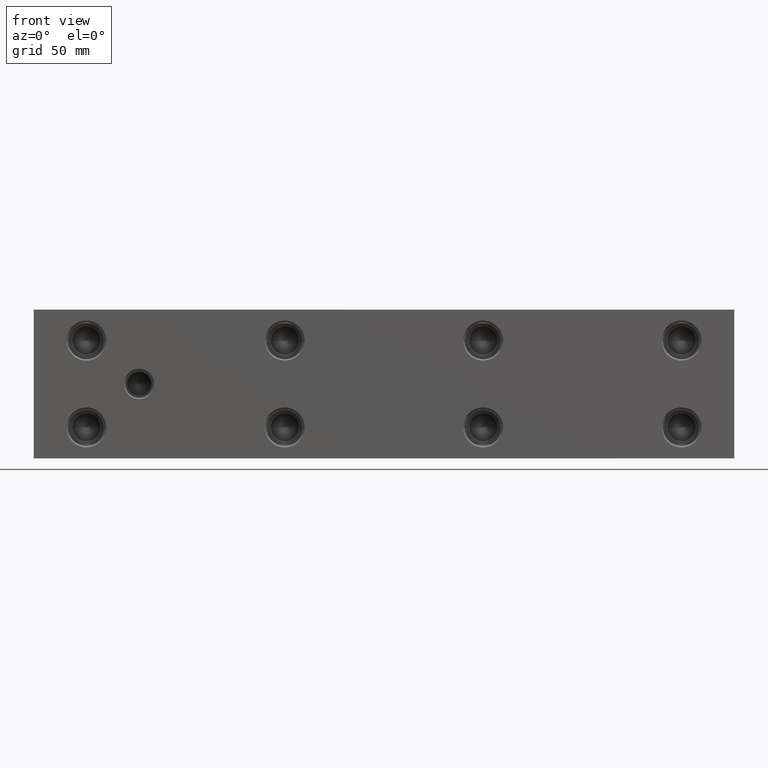
[diagram: clean part render]
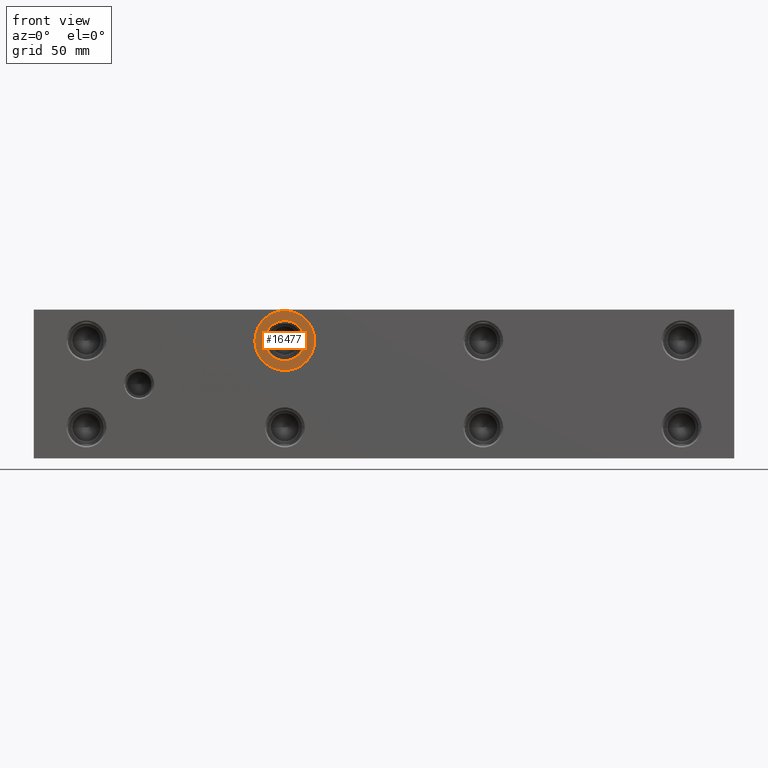
[diagram: same view with one face highlighted and labeled with its STEP entity id]
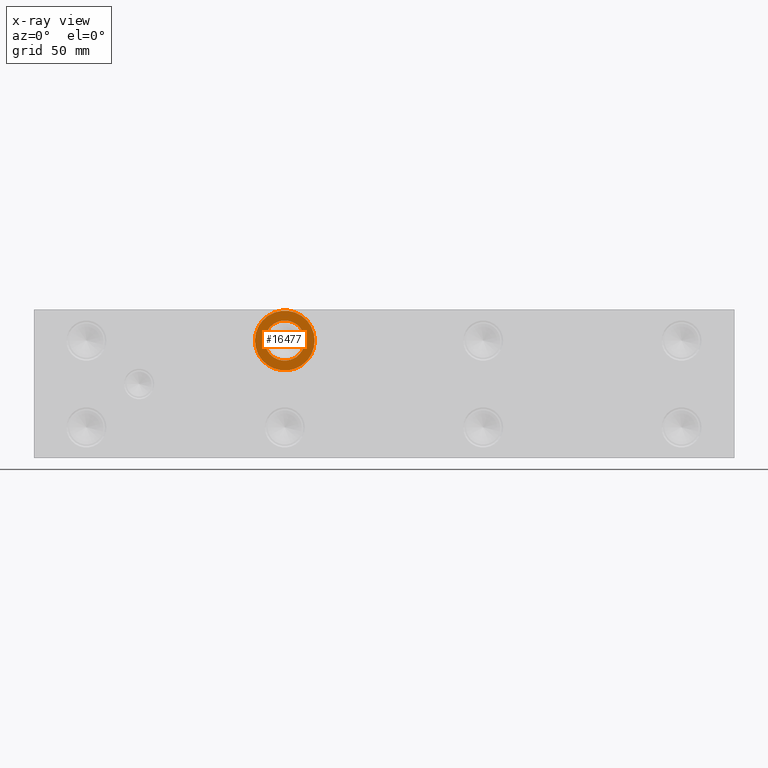
[diagram: x-ray of the same camera — body ghosted, the highlighted face saturated]
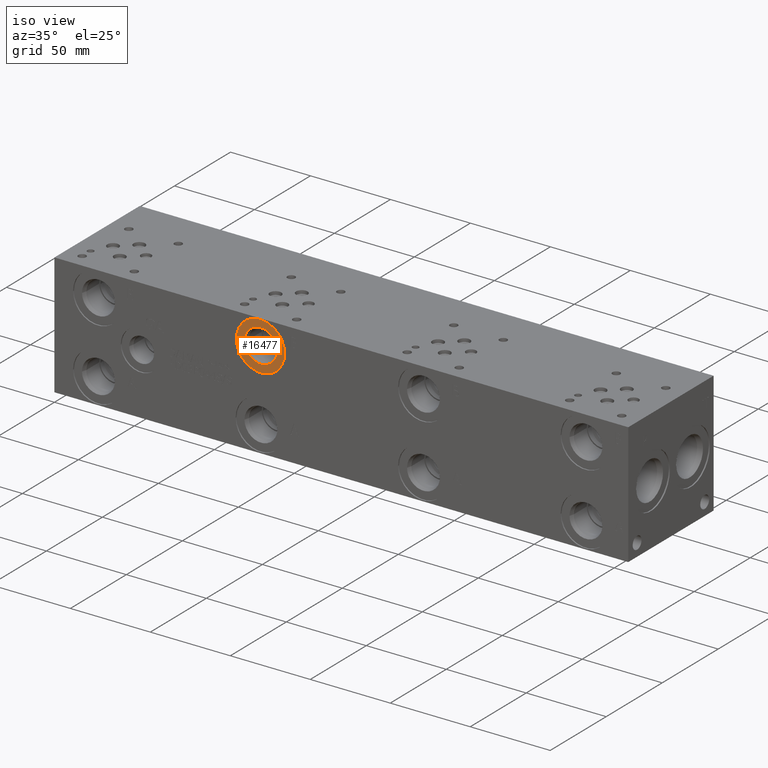
[diagram: same view with one face highlighted and labeled with its STEP entity id]
A machine part, front view. The second image highlights one B-rep face of the part: STEP entity #16477.
The next image is the same camera in x-ray: the body ghosted, the highlighted face saturated — about 0% of this face is hidden behind the body in this view.
A second angle (iso view) of the same face is appended — the face is thin or edge-on in the first view.
In plain terms, the highlighted planar face has unit normal (0, 1, 0).
Its self-contained STEP definition (entity closure, byte-faithful):
#541=CIRCLE('',#17468,15.3162);
#542=CIRCLE('',#17469,15.3162);
#543=CIRCLE('',#17471,10.2997);
#544=CIRCLE('',#17472,10.2997);
#840=FACE_BOUND('',#3146,.T.);
#2179=FACE_OUTER_BOUND('',#3145,.T.);
#3145=EDGE_LOOP('',(#13992,#13993));
#3146=EDGE_LOOP('',(#13994,#13995));
#7616=VERTEX_POINT('',#28109);
#7617=VERTEX_POINT('',#28111);
#7618=VERTEX_POINT('',#28115);
#7619=VERTEX_POINT('',#28116);
#9822=EDGE_CURVE('',#7616,#7617,#541,.T.);
#9823=EDGE_CURVE('',#7617,#7616,#542,.T.);
#9824=EDGE_CURVE('',#7618,#7619,#543,.T.);
#9825=EDGE_CURVE('',#7619,#7618,#544,.T.);
#13992=ORIENTED_EDGE('',*,*,#9823,.F.);
#13993=ORIENTED_EDGE('',*,*,#9822,.F.);
#13994=ORIENTED_EDGE('',*,*,#9824,.T.);
#13995=ORIENTED_EDGE('',*,*,#9825,.T.);
#15167=PLANE('',#17470);
#16477=ADVANCED_FACE('',(#2179,#840),#15167,.F.);
#17468=AXIS2_PLACEMENT_3D('',#28112,#20803,#20804);
#17469=AXIS2_PLACEMENT_3D('',#28113,#20805,#20806);
#17470=AXIS2_PLACEMENT_3D('',#28114,#20807,#20808);
#17471=AXIS2_PLACEMENT_3D('',#28117,#20809,#20810);
#17472=AXIS2_PLACEMENT_3D('',#28118,#20811,#20812);
#20803=DIRECTION('center_axis',(0.,1.,0.));
#20804=DIRECTION('ref_axis',(1.,0.,0.));
#20805=DIRECTION('center_axis',(0.,1.,0.));
#20806=DIRECTION('ref_axis',(1.,0.,0.));
#20807=DIRECTION('center_axis',(0.,1.,0.));
#20808=DIRECTION('ref_axis',(0.,0.,1.));
#20809=DIRECTION('center_axis',(0.,1.,0.));
#20810=DIRECTION('ref_axis',(1.,0.,0.));
#20811=DIRECTION('center_axis',(0.,1.,0.));
#20812=DIRECTION('ref_axis',(1.,0.,0.));
#28109=CARTESIAN_POINT('',(113.2586,0.7874,60.325));
#28111=CARTESIAN_POINT('',(143.891,0.7874,60.325));
#28112=CARTESIAN_POINT('Origin',(128.5748,0.7874,60.325));
#28113=CARTESIAN_POINT('Origin',(128.5748,0.7874,60.325));
#28114=CARTESIAN_POINT('Origin',(138.8745,0.7874,60.325));
#28115=CARTESIAN_POINT('',(138.8745,0.7874,60.325));
#28116=CARTESIAN_POINT('',(118.2751,0.787399999999997,60.325));
#28117=CARTESIAN_POINT('Origin',(128.5748,0.7874,60.325));
#28118=CARTESIAN_POINT('Origin',(128.5748,0.7874,60.325));